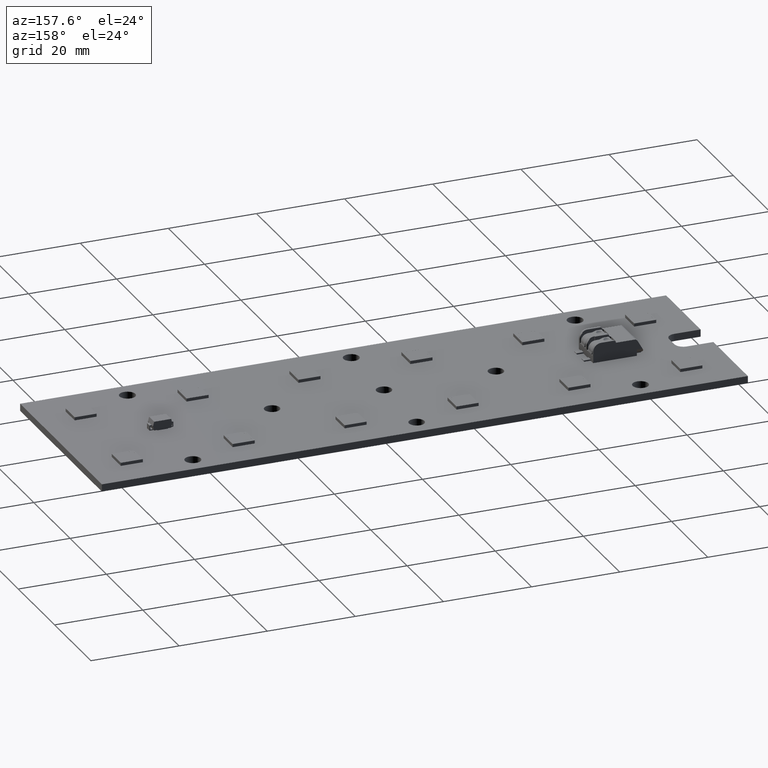
[diagram: clean part render]
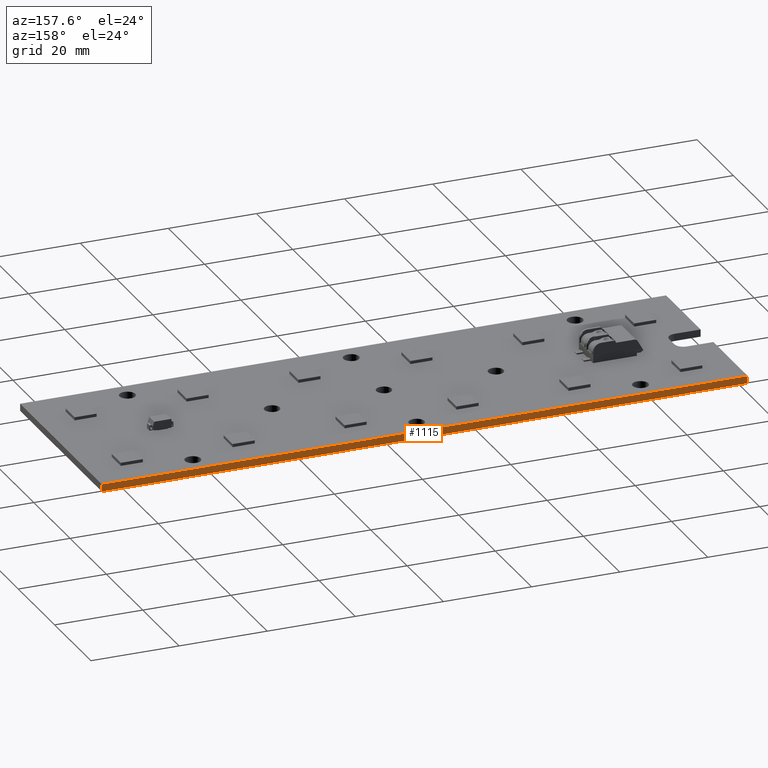
[diagram: same view with one face highlighted and labeled with its STEP entity id]
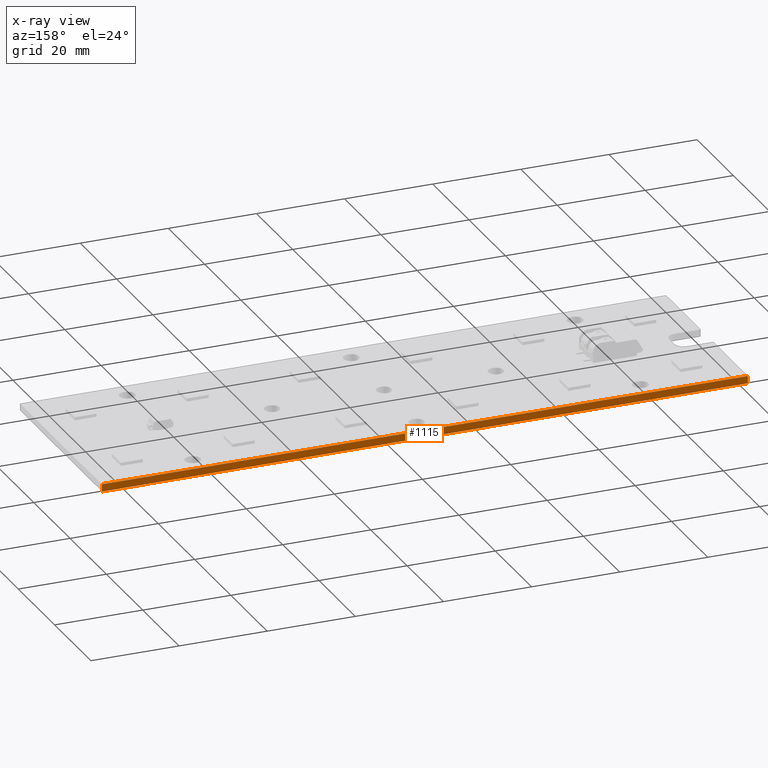
[diagram: x-ray of the same camera — body ghosted, the highlighted face saturated]
A machine part, auxiliary view. The second image highlights one B-rep face of the part: STEP entity #1115.
The next image is the same camera in x-ray: the body ghosted, the highlighted face saturated — about 0% of this face is hidden behind the body in this view.
In plain terms, the highlighted planar face has unit normal (0, 1, 0).
Its self-contained STEP definition (entity closure, byte-faithful):
#1115=ADVANCED_FACE('',(#1551),#1381,.T.);
#1381=PLANE('',#5800);
#1551=FACE_OUTER_BOUND('',#1801,.T.);
#1801=EDGE_LOOP('',(#2106,#2107,#2108,#2109));
#2106=ORIENTED_EDGE('',*,*,#4041,.F.);
#2107=ORIENTED_EDGE('',*,*,#4040,.F.);
#2108=ORIENTED_EDGE('',*,*,#4042,.T.);
#2109=ORIENTED_EDGE('',*,*,#4043,.T.);
#3552=VERTEX_POINT('',#7704);
#3553=VERTEX_POINT('',#7706);
#3554=VERTEX_POINT('',#7710);
#3555=VERTEX_POINT('',#7712);
#4040=EDGE_CURVE('',#3553,#3552,#4765,.T.);
#4041=EDGE_CURVE('',#3552,#3554,#4766,.T.);
#4042=EDGE_CURVE('',#3553,#3555,#4767,.T.);
#4043=EDGE_CURVE('',#3555,#3554,#4768,.T.);
#4765=LINE('',#7707,#5284);
#4766=LINE('',#7709,#5285);
#4767=LINE('',#7711,#5286);
#4768=LINE('',#7713,#5287);
#5284=VECTOR('',#6266,1.);
#5285=VECTOR('',#6269,1.);
#5286=VECTOR('',#6270,1.);
#5287=VECTOR('',#6271,1.);
#5800=AXIS2_PLACEMENT_3D('',#7714,#6272,#6273);
#6266=DIRECTION('',(0.,0.,1.));
#6269=DIRECTION('',(-1.,0.,0.));
#6270=DIRECTION('',(-1.,0.,0.));
#6271=DIRECTION('',(0.,0.,1.));
#6272=DIRECTION('',(0.,1.,0.));
#6273=DIRECTION('',(0.,0.,1.));
#7704=CARTESIAN_POINT('',(146.6,45.,0.));
#7706=CARTESIAN_POINT('',(146.6,45.,-1.65));
#7707=CARTESIAN_POINT('',(146.6,45.,-1.65));
#7709=CARTESIAN_POINT('',(146.6,45.,0.));
#7710=CARTESIAN_POINT('',(0.,45.,0.));
#7711=CARTESIAN_POINT('',(146.6,45.,-1.65));
#7712=CARTESIAN_POINT('',(0.,45.,-1.65));
#7713=CARTESIAN_POINT('',(0.,45.,-1.65));
#7714=CARTESIAN_POINT('',(146.6,45.,-1.65));